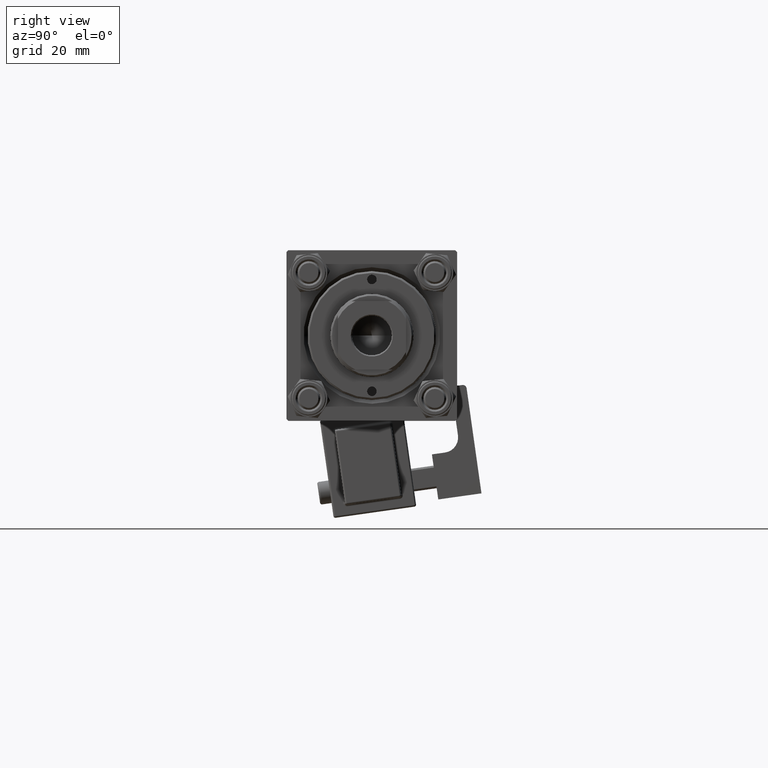
[diagram: clean part render]
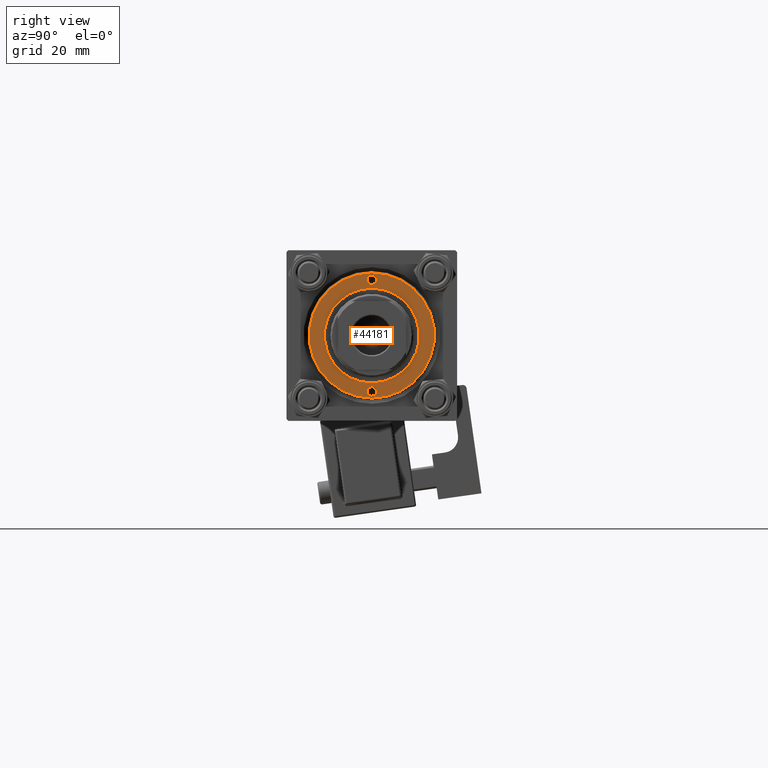
[diagram: same view with one face highlighted and labeled with its STEP entity id]
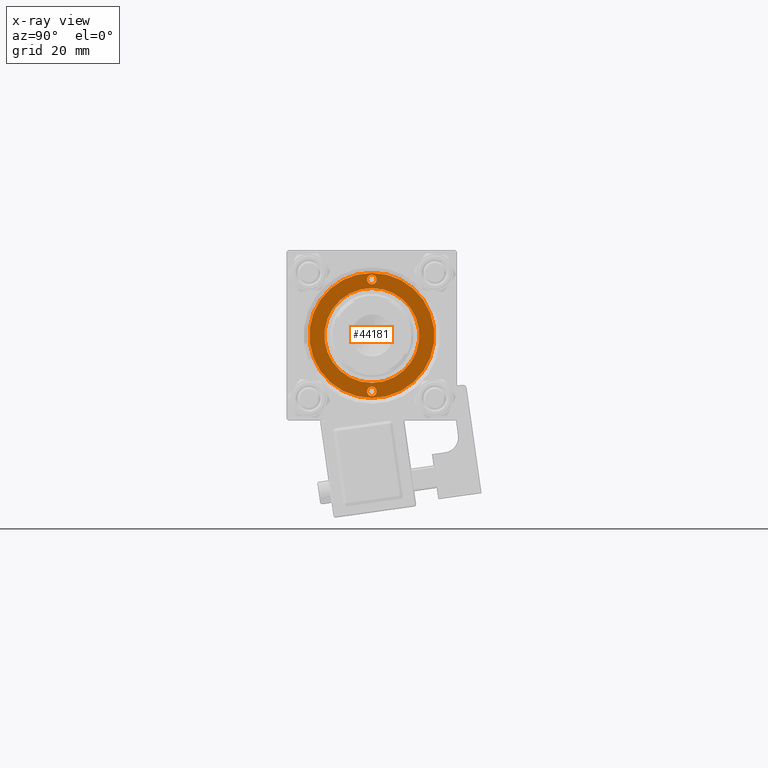
[diagram: x-ray of the same camera — body ghosted, the highlighted face saturated]
A machine part, right view. The second image highlights one B-rep face of the part: STEP entity #44181.
The next image is the same camera in x-ray: the body ghosted, the highlighted face saturated — about 0% of this face is hidden behind the body in this view.
In plain terms, the highlighted planar face has unit normal (1, 0, -0).
Its self-contained STEP definition (entity closure, byte-faithful):
#1076 = CARTESIAN_POINT ( 'NONE',  ( 14.75000000000000000, 0.000000000000000000, 40.70000000000000284 ) ) ;
#1400 = FACE_BOUND ( 'NONE', #21308, .T. ) ;
#1512 = ORIENTED_EDGE ( 'NONE', *, *, #46176, .F. ) ;
#2441 = FACE_BOUND ( 'NONE', #17407, .T. ) ;
#2634 = DIRECTION ( 'NONE',  ( -0.000000000000000000, -0.000000000000000000, 1.000000000000000000 ) ) ;
#2891 = AXIS2_PLACEMENT_3D ( 'NONE', #34395, #22231, #14317 ) ;
#2934 = CARTESIAN_POINT ( 'NONE',  ( 16.49999999999999289, 2.051283388571816493E-15, 40.70000000000000284 ) ) ;
#3320 = DIRECTION ( 'NONE',  ( 0.000000000000000000, 0.000000000000000000, 1.000000000000000000 ) ) ;
#3641 = CIRCLE ( 'NONE', #6209, 12.50000000000000000 ) ;
#4193 = ORIENTED_EDGE ( 'NONE', *, *, #18766, .T. ) ;
#4499 = CARTESIAN_POINT ( 'NONE',  ( -16.49999999999999289, 0.000000000000000000, 40.70000000000000284 ) ) ;
#4780 = DIRECTION ( 'NONE',  ( 1.000000000000000000, 0.000000000000000000, 0.000000000000000000 ) ) ;
#6209 = AXIS2_PLACEMENT_3D ( 'NONE', #24519, #48869, #40404 ) ;
#8157 = DIRECTION ( 'NONE',  ( 0.000000000000000000, 0.000000000000000000, 1.000000000000000000 ) ) ;
#8653 = VERTEX_POINT ( 'NONE', #4499 ) ;
#9332 = FACE_OUTER_BOUND ( 'NONE', #37049, .T. ) ;
#9698 = EDGE_CURVE ( 'NONE', #13177, #46944, #11933, .T. ) ;
#10573 = CARTESIAN_POINT ( 'NONE',  ( 14.75000000000000000, 0.000000000000000000, 40.70000000000000284 ) ) ;
#11933 = CIRCLE ( 'NONE', #33037, 1.250000000000001110 ) ;
#12251 = CARTESIAN_POINT ( 'NONE',  ( -16.00000000000000000, 1.530808498934190585E-16, 40.70000000000000284 ) ) ;
#12384 = CARTESIAN_POINT ( 'NONE',  ( 0.000000000000000000, 0.000000000000000000, 40.70000000000000284 ) ) ;
#12567 = EDGE_LOOP ( 'NONE', ( #1512, #49101 ) ) ;
#13177 = VERTEX_POINT ( 'NONE', #50578 ) ;
#13303 = CARTESIAN_POINT ( 'NONE',  ( 0.000000000000000000, 0.000000000000000000, 40.70000000000000284 ) ) ;
#14317 = DIRECTION ( 'NONE',  ( 1.000000000000000000, 0.000000000000000000, 0.000000000000000000 ) ) ;
#15043 = DIRECTION ( 'NONE',  ( -0.000000000000000000, -0.000000000000000000, 1.000000000000000000 ) ) ;
#15423 = CARTESIAN_POINT ( 'NONE',  ( -14.75000000000000000, 0.000000000000000000, 40.70000000000000284 ) ) ;
#15465 = DIRECTION ( 'NONE',  ( 1.000000000000000000, 0.000000000000000000, 0.000000000000000000 ) ) ;
#15521 = CIRCLE ( 'NONE', #24793, 16.49999999999999289 ) ;
#17407 = EDGE_LOOP ( 'NONE', ( #32376, #37996 ) ) ;
#18691 = ORIENTED_EDGE ( 'NONE', *, *, #9698, .F. ) ;
#18766 = EDGE_CURVE ( 'NONE', #26912, #8653, #15521, .T. ) ;
#18972 = ORIENTED_EDGE ( 'NONE', *, *, #22872, .F. ) ;
#19394 = AXIS2_PLACEMENT_3D ( 'NONE', #12384, #8157, #28486 ) ;
#20888 = DIRECTION ( 'NONE',  ( -0.000000000000000000, -0.000000000000000000, 1.000000000000000000 ) ) ;
#21308 = EDGE_LOOP ( 'NONE', ( #18691, #18972 ) ) ;
#21326 = VERTEX_POINT ( 'NONE', #48529 ) ;
#22231 = DIRECTION ( 'NONE',  ( 0.000000000000000000, 0.000000000000000000, 1.000000000000000000 ) ) ;
#22299 = CIRCLE ( 'NONE', #34157, 1.249999999999999334 ) ;
#22872 = EDGE_CURVE ( 'NONE', #46944, #13177, #45192, .T. ) ;
#22963 = CARTESIAN_POINT ( 'NONE',  ( -12.50000000000000000, 1.530808498934191521E-15, 40.70000000000000284 ) ) ;
#23604 = CARTESIAN_POINT ( 'NONE',  ( 12.50000000000000000, 0.000000000000000000, 40.70000000000000284 ) ) ;
#24519 = CARTESIAN_POINT ( 'NONE',  ( 0.000000000000000000, 0.000000000000000000, 40.70000000000000284 ) ) ;
#24793 = AXIS2_PLACEMENT_3D ( 'NONE', #51189, #3320, #15465 ) ;
#25645 = CIRCLE ( 'NONE', #2891, 16.49999999999999289 ) ;
#26200 = PLANE ( 'NONE',  #49269 ) ;
#26655 = DIRECTION ( 'NONE',  ( 1.000000000000000000, 0.000000000000000000, 0.000000000000000000 ) ) ;
#26912 = VERTEX_POINT ( 'NONE', #2934 ) ;
#28486 = DIRECTION ( 'NONE',  ( 1.000000000000000000, 0.000000000000000000, 0.000000000000000000 ) ) ;
#29549 = EDGE_CURVE ( 'NONE', #44566, #48044, #42236, .T. ) ;
#29925 = DIRECTION ( 'NONE',  ( 1.000000000000000000, 0.000000000000000000, -0.000000000000000000 ) ) ;
#30905 = DIRECTION ( 'NONE',  ( 1.000000000000000000, 0.000000000000000000, 0.000000000000000000 ) ) ;
#32369 = AXIS2_PLACEMENT_3D ( 'NONE', #39369, #15043, #30905 ) ;
#32376 = ORIENTED_EDGE ( 'NONE', *, *, #39538, .F. ) ;
#33037 = AXIS2_PLACEMENT_3D ( 'NONE', #10573, #2634, #26655 ) ;
#34157 = AXIS2_PLACEMENT_3D ( 'NONE', #15423, #48745, #44752 ) ;
#34395 = CARTESIAN_POINT ( 'NONE',  ( 0.000000000000000000, 0.000000000000000000, 40.70000000000000284 ) ) ;
#35327 = CARTESIAN_POINT ( 'NONE',  ( 13.49999999999999822, 1.530808498934192803E-16, 40.70000000000000284 ) ) ;
#37049 = EDGE_LOOP ( 'NONE', ( #43573, #4193 ) ) ;
#37996 = ORIENTED_EDGE ( 'NONE', *, *, #29549, .F. ) ;
#39369 = CARTESIAN_POINT ( 'NONE',  ( -14.75000000000000000, 0.000000000000000000, 40.70000000000000284 ) ) ;
#39538 = EDGE_CURVE ( 'NONE', #48044, #44566, #3641, .T. ) ;
#40404 = DIRECTION ( 'NONE',  ( 1.000000000000000000, 0.000000000000000000, 0.000000000000000000 ) ) ;
#42236 = CIRCLE ( 'NONE', #19394, 12.50000000000000000 ) ;
#42529 = EDGE_CURVE ( 'NONE', #8653, #26912, #25645, .T. ) ;
#42609 = DIRECTION ( 'NONE',  ( 0.000000000000000000, 0.000000000000000000, 1.000000000000000000 ) ) ;
#43289 = VERTEX_POINT ( 'NONE', #12251 ) ;
#43573 = ORIENTED_EDGE ( 'NONE', *, *, #42529, .T. ) ;
#44181 = ADVANCED_FACE ( 'NONE', ( #46057, #1400, #2441, #9332 ), #26200, .T. ) ;
#44566 = VERTEX_POINT ( 'NONE', #22963 ) ;
#44596 = EDGE_CURVE ( 'NONE', #43289, #21326, #46727, .T. ) ;
#44752 = DIRECTION ( 'NONE',  ( 1.000000000000000000, 0.000000000000000000, 0.000000000000000000 ) ) ;
#45192 = CIRCLE ( 'NONE', #49438, 1.250000000000001110 ) ;
#46057 = FACE_BOUND ( 'NONE', #12567, .T. ) ;
#46176 = EDGE_CURVE ( 'NONE', #21326, #43289, #22299, .T. ) ;
#46727 = CIRCLE ( 'NONE', #32369, 1.249999999999999334 ) ;
#46944 = VERTEX_POINT ( 'NONE', #35327 ) ;
#48044 = VERTEX_POINT ( 'NONE', #23604 ) ;
#48529 = CARTESIAN_POINT ( 'NONE',  ( -13.50000000000000000, 0.000000000000000000, 40.70000000000000284 ) ) ;
#48745 = DIRECTION ( 'NONE',  ( -0.000000000000000000, -0.000000000000000000, 1.000000000000000000 ) ) ;
#48869 = DIRECTION ( 'NONE',  ( 0.000000000000000000, 0.000000000000000000, 1.000000000000000000 ) ) ;
#49101 = ORIENTED_EDGE ( 'NONE', *, *, #44596, .F. ) ;
#49269 = AXIS2_PLACEMENT_3D ( 'NONE', #13303, #42609, #29925 ) ;
#49438 = AXIS2_PLACEMENT_3D ( 'NONE', #1076, #20888, #4780 ) ;
#50578 = CARTESIAN_POINT ( 'NONE',  ( 16.00000000000000000, 0.000000000000000000, 40.70000000000000284 ) ) ;
#51189 = CARTESIAN_POINT ( 'NONE',  ( 0.000000000000000000, 0.000000000000000000, 40.70000000000000284 ) ) ;